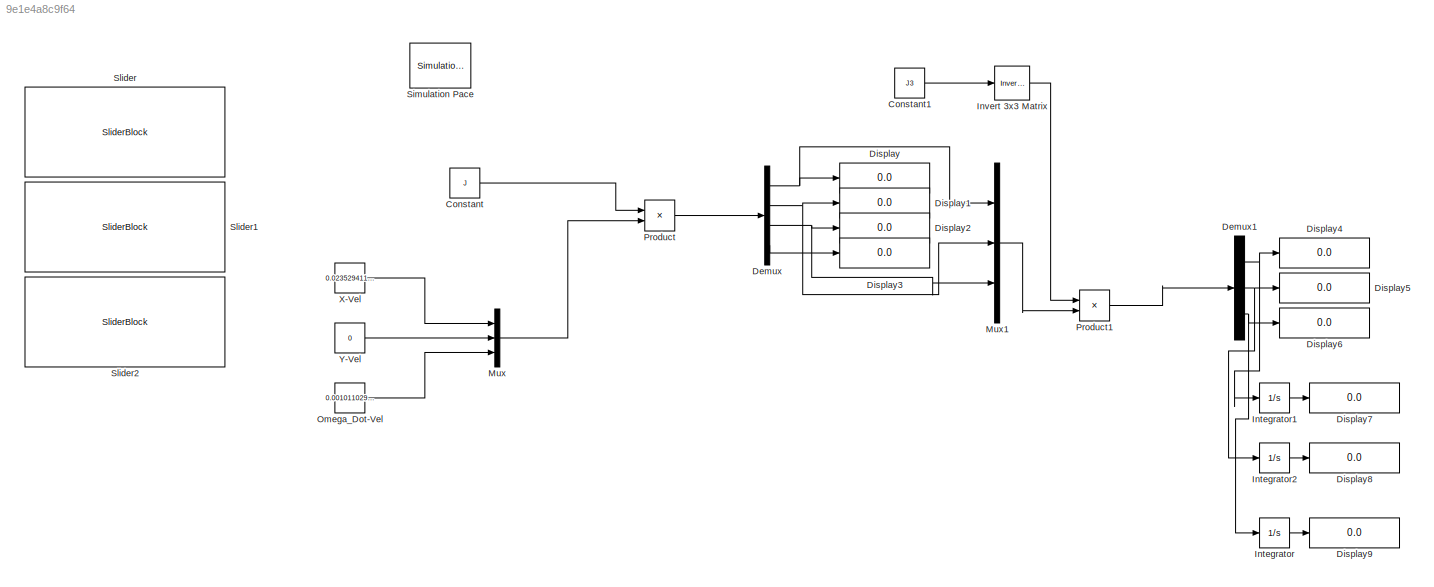
MODEL slx_9e1e4a8c9f64
KIND model
CONFIG AbsTol = auto
CONFIG EnableMultiTasking = off
CONFIG FixedStep = auto
CONFIG InitFcn = mecanum_init
CONFIG MaxStep = auto
CONFIG MinStep = auto
CONFIG RelTol = 1e-3
CONFIG SampleTimeConstraint = Unconstrained
CONFIG Solver = VariableStepAuto
CONFIG SolverName = VariableStepAuto
CONFIG StartTime = 0.0
CONFIG StopTime = inf
BLOCK [Constant] Constant
  Value = J
BLOCK [Constant] Constant1
  Value = J3
BLOCK [Demux] Demux
  DisplayOption = bar
  Ports = [1, 4]
BLOCK [Demux] Demux1
  DisplayOption = bar
  Outputs = 3
  Ports = [1, 3]
BLOCK [Display] Display
  Decimation = 1
  Ports = [1]
BLOCK [Display] Display1
  Decimation = 1
  Ports = [1]
BLOCK [Display] Display2
  Decimation = 1
  Ports = [1]
BLOCK [Display] Display3
  Decimation = 1
  Ports = [1]
BLOCK [Display] Display4
  Decimation = 1
  Ports = [1]
BLOCK [Display] Display5
  Decimation = 1
  Ports = [1]
BLOCK [Display] Display6
  Decimation = 1
  Ports = [1]
BLOCK [Display] Display7
  Decimation = 1
  Ports = [1]
BLOCK [Display] Display8
  Decimation = 1
  Ports = [1]
BLOCK [Display] Display9
  Decimation = 1
  Ports = [1]
BLOCK [Integrator] Integrator
  Ports = [1, 1]
BLOCK [Integrator] Integrator1
  Ports = [1, 1]
BLOCK [Integrator] Integrator2
  Ports = [1, 1]
BLOCK [Reference] Invert 3x3 Matrix  REF=aerolibutil/Invert 
3x3 Matrix
  Ports = [1, 1]
  SourceBlock = aerolibutil/Invert \n3x3 Matrix
  SourceProductBaseCode = AE
  SourceProductName = Aerospace Blockset
  SourceType = Invert 3x3 Matrix
BLOCK [Mux] Mux
  DisplayOption = bar
  Inputs = 3
  Ports = [3, 1]
BLOCK [Mux] Mux1
  DisplayOption = bar
  Inputs = 3
  Ports = [3, 1]
BLOCK [Constant] Omega_Dot-Vel
  Value = 0.001011029411764675
BLOCK [Product] Product
  InputSameDT = off
  Multiplication = Matrix(*)
  OutDataTypeStr = Inherit: Inherit via internal rule
  Ports = [2, 1]
  RndMeth = Floor
  SaturateOnIntegerOverflow = off
BLOCK [Product] Product1
  InputSameDT = off
  Multiplication = Matrix(*)
  OutDataTypeStr = Inherit: Inherit via internal rule
  Ports = [2, 1]
  RndMeth = Floor
  SaturateOnIntegerOverflow = off
BLOCK [Reference] Simulation Pace  REF=aerolibanimutils/Simulation Pace
  AttributesFormatString = %<SleepMode>\n%<SimulationPace> sec/sec
  Ports = []
  SourceBlock = aerolibanimutils/Simulation Pace
  SourceProductBaseCode = AE
  SourceProductName = Aerospace Blockset
  SourceType = Simulation Pace
BLOCK [SliderBlock] Slider
  ScaleMax = 2
  ScaleMin = -2
BLOCK [SliderBlock] Slider1
  ScaleMax = 2
  ScaleMin = -2
BLOCK [SliderBlock] Slider2
  ScaleMax = 0.5
  ScaleMin = -0.5
BLOCK [Constant] X-Vel
  Value = 0.0235294117647058
BLOCK [Constant] Y-Vel
  Value = 0
LINE Constant1:1 -> Invert 3x3 Matrix:1
LINE Constant:1 -> Product:1
NET Demux1:1 -> Display4:1, Integrator1:1
NET Demux1:2 -> Display5:1, Integrator2:1
NET Demux1:3 -> Display6:1, Integrator:1
NET Demux:1 -> Display:1, Mux1:1
NET Demux:2 -> Display1:1, Mux1:2
NET Demux:3 -> Display2:1, Mux1:3
LINE Demux:4 -> Display3:1
LINE Integrator1:1 -> Display7:1
LINE Integrator2:1 -> Display8:1
LINE Integrator:1 -> Display9:1
LINE Invert 3x3 Matrix:1 -> Product1:1
LINE Mux1:1 -> Product1:2
LINE Mux:1 -> Product:2
LINE Omega_Dot-Vel:1 -> Mux:3
LINE Product1:1 -> Demux1:1
LINE Product:1 -> Demux:1
LINE X-Vel:1 -> Mux:1
LINE Y-Vel:1 -> Mux:2
note: NET lines group one-source signal fan-out (src -> all destinations, sorted); 1:1 wires keep LINE
